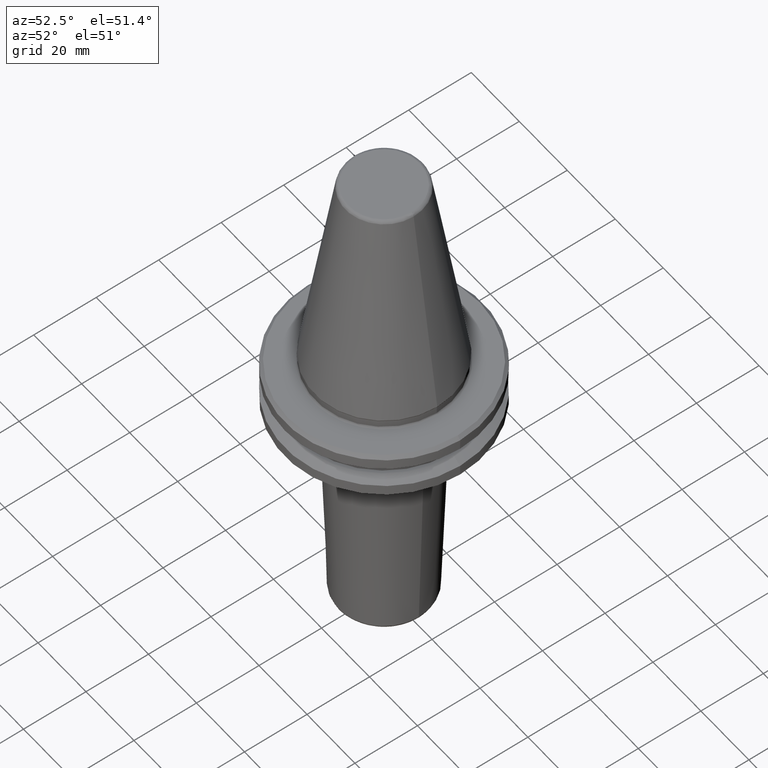
[diagram: clean part render]
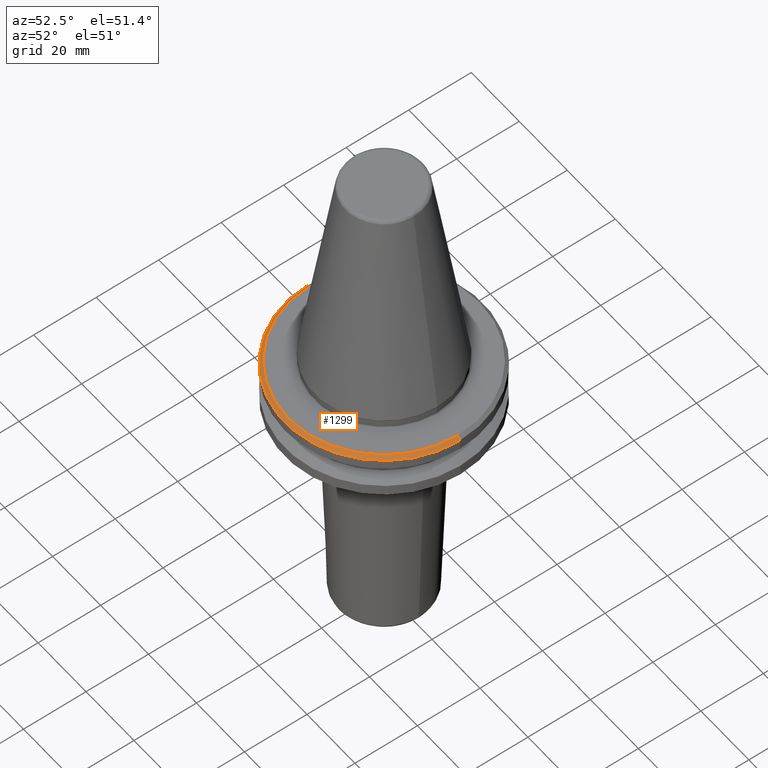
[diagram: same view with one face highlighted and labeled with its STEP entity id]
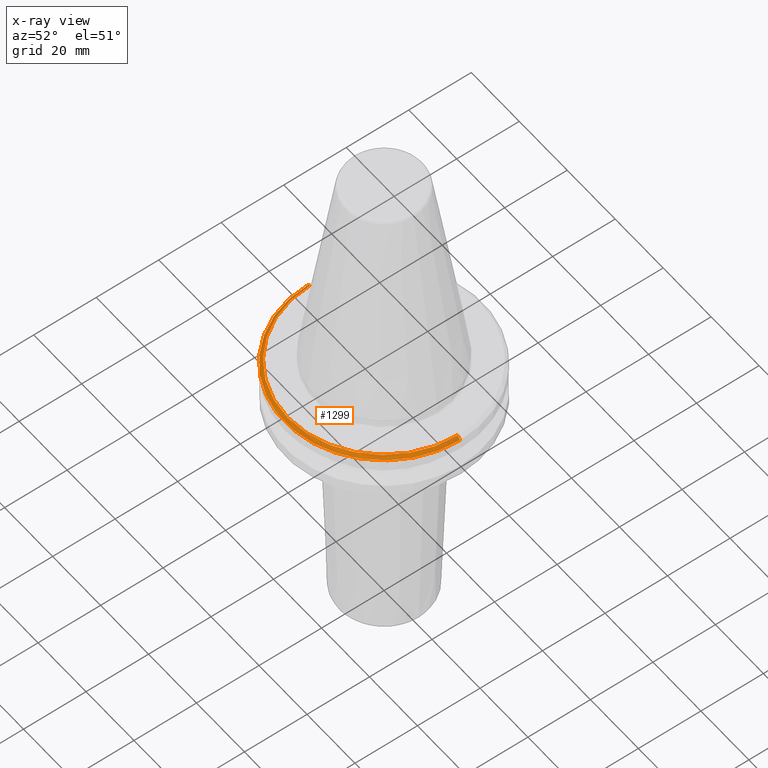
[diagram: x-ray of the same camera — body ghosted, the highlighted face saturated]
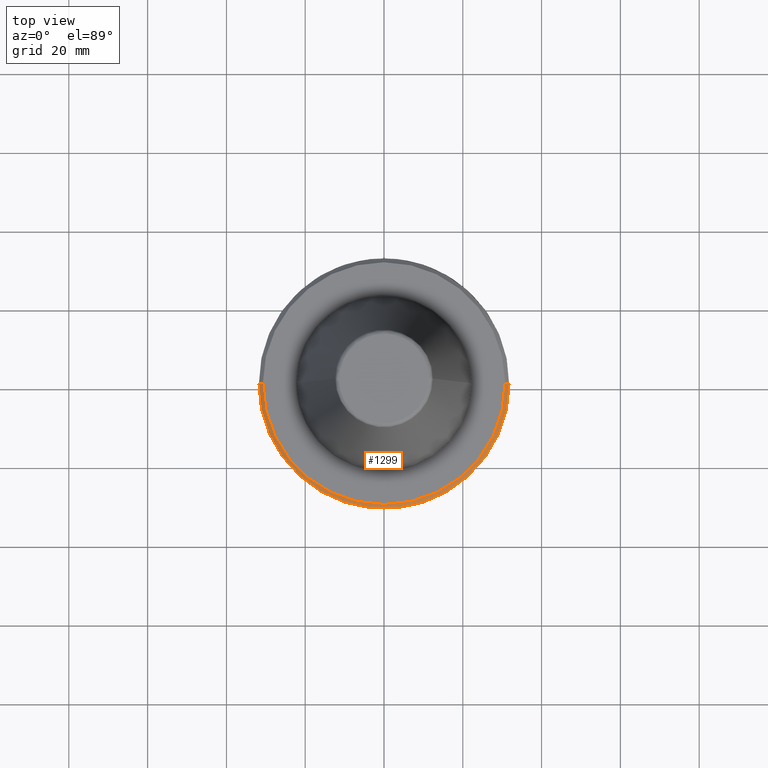
[diagram: same view with one face highlighted and labeled with its STEP entity id]
A machine part, auxiliary view. The second image highlights one B-rep face of the part: STEP entity #1299.
The next image is the same camera in x-ray: the body ghosted, the highlighted face saturated — about 0% of this face is hidden behind the body in this view.
A second angle (top view) of the same face is appended — the face is thin or edge-on in the first view.
In plain terms, the highlighted conical surface has half-angle 45 deg.
Its self-contained STEP definition (entity closure, byte-faithful):
#53 = CONICAL_SURFACE ( 'NONE', #798, 31.63284271247462300, 0.7853981633974429500 ) ;
#61 = DIRECTION ( 'NONE',  ( -0.0000000000000000000, -0.0000000000000000000, 1.000000000000000000 ) ) ;
#88 = ORIENTED_EDGE ( 'NONE', *, *, #303, .T. ) ;
#131 = EDGE_CURVE ( 'NONE', #1506, #1384, #964, .T. ) ;
#140 = FACE_OUTER_BOUND ( 'NONE', #1524, .T. ) ;
#187 = DIRECTION ( 'NONE',  ( 1.000000000000000000, 0.0000000000000000000, 0.0000000000000000000 ) ) ;
#223 = CARTESIAN_POINT ( 'NONE',  ( 31.74999999999983300, 0.0000000000000000000, -4.199999999999926500 ) ) ;
#255 = CARTESIAN_POINT ( 'NONE',  ( -30.74999999999994300, 0.0000000000000000000, -3.200000000000036100 ) ) ;
#300 = CARTESIAN_POINT ( 'NONE',  ( 0.0000000000000000000, 0.0000000000000000000, -3.200000000000036100 ) ) ;
#303 = EDGE_CURVE ( 'NONE', #1325, #723, #1096, .T. ) ;
#331 = CARTESIAN_POINT ( 'NONE',  ( 0.0000000000000000000, 0.0000000000000000000, -4.082842712474625400 ) ) ;
#343 = DIRECTION ( 'NONE',  ( 0.0000000000000000000, 0.0000000000000000000, -1.000000000000000000 ) ) ;
#352 = AXIS2_PLACEMENT_3D ( 'NONE', #300, #61, #955 ) ;
#405 = EDGE_CURVE ( 'NONE', #1506, #1325, #1175, .T. ) ;
#460 = DIRECTION ( 'NONE',  ( -1.000000000000000000, 0.0000000000000000000, 0.0000000000000000000 ) ) ;
#476 = VECTOR ( 'NONE', #853, 1000.000000000000000 ) ;
#535 = CARTESIAN_POINT ( 'NONE',  ( -31.63284271247462300, 0.0000000000000000000, -4.082842712474625400 ) ) ;
#549 = AXIS2_PLACEMENT_3D ( 'NONE', #1363, #1357, #187 ) ;
#723 = VERTEX_POINT ( 'NONE', #223 ) ;
#798 = AXIS2_PLACEMENT_3D ( 'NONE', #331, #343, #460 ) ;
#810 = LINE ( 'NONE', #1333, #843 ) ;
#843 = VECTOR ( 'NONE', #1330, 1000.000000000000000 ) ;
#853 = DIRECTION ( 'NONE',  ( -0.7071067811865438000, 0.0000000000000000000, -0.7071067811865513500 ) ) ;
#955 = DIRECTION ( 'NONE',  ( 1.000000000000000000, 0.0000000000000000000, 0.0000000000000000000 ) ) ;
#964 = CIRCLE ( 'NONE', #352, 30.74999999999994300 ) ;
#979 = EDGE_CURVE ( 'NONE', #1384, #723, #810, .T. ) ;
#1004 = ORIENTED_EDGE ( 'NONE', *, *, #131, .F. ) ;
#1096 = CIRCLE ( 'NONE', #549, 31.74999999999983300 ) ;
#1173 = ORIENTED_EDGE ( 'NONE', *, *, #405, .T. ) ;
#1175 = LINE ( 'NONE', #535, #476 ) ;
#1299 = ADVANCED_FACE ( 'NONE', ( #140 ), #53, .T. ) ;
#1321 = CARTESIAN_POINT ( 'NONE',  ( 30.74999999999994300, 3.827021247335470200E-015, -3.200000000000036100 ) ) ;
#1325 = VERTEX_POINT ( 'NONE', #1426 ) ;
#1330 = DIRECTION ( 'NONE',  ( 0.7071067811865438000, 8.659560562354888500E-017, -0.7071067811865513500 ) ) ;
#1333 = CARTESIAN_POINT ( 'NONE',  ( 31.63284271247462300, 3.873905957576372200E-015, -4.082842712474625400 ) ) ;
#1357 = DIRECTION ( 'NONE',  ( -0.0000000000000000000, -0.0000000000000000000, 1.000000000000000000 ) ) ;
#1363 = CARTESIAN_POINT ( 'NONE',  ( 0.0000000000000000000, 0.0000000000000000000, -4.199999999999926500 ) ) ;
#1384 = VERTEX_POINT ( 'NONE', #1321 ) ;
#1426 = CARTESIAN_POINT ( 'NONE',  ( -31.74999999999983300, 3.888253587292836200E-015, -4.199999999999926500 ) ) ;
#1499 = ORIENTED_EDGE ( 'NONE', *, *, #979, .F. ) ;
#1506 = VERTEX_POINT ( 'NONE', #255 ) ;
#1524 = EDGE_LOOP ( 'NONE', ( #1499, #1004, #1173, #88 ) ) ;